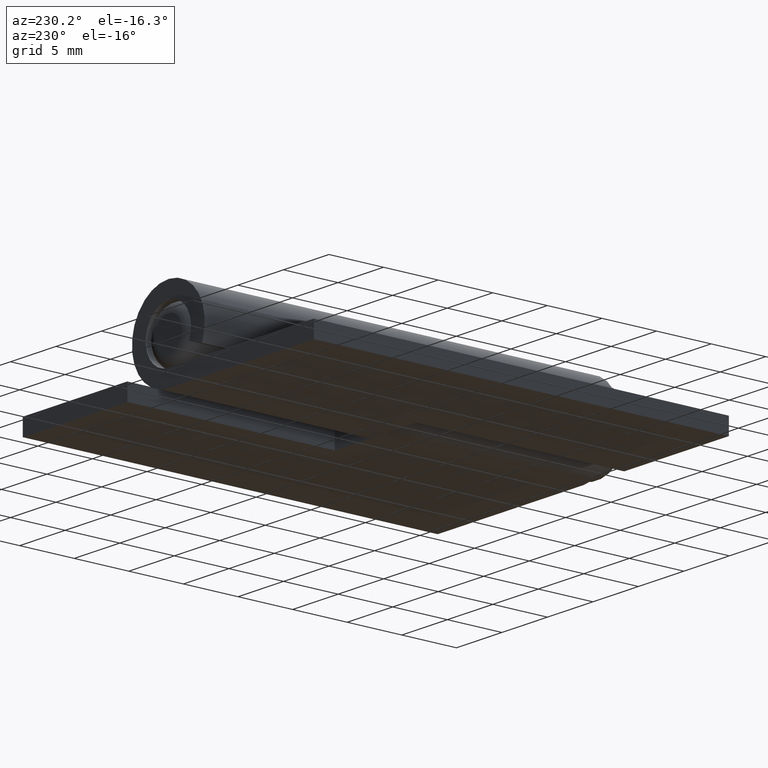
[diagram: clean part render]
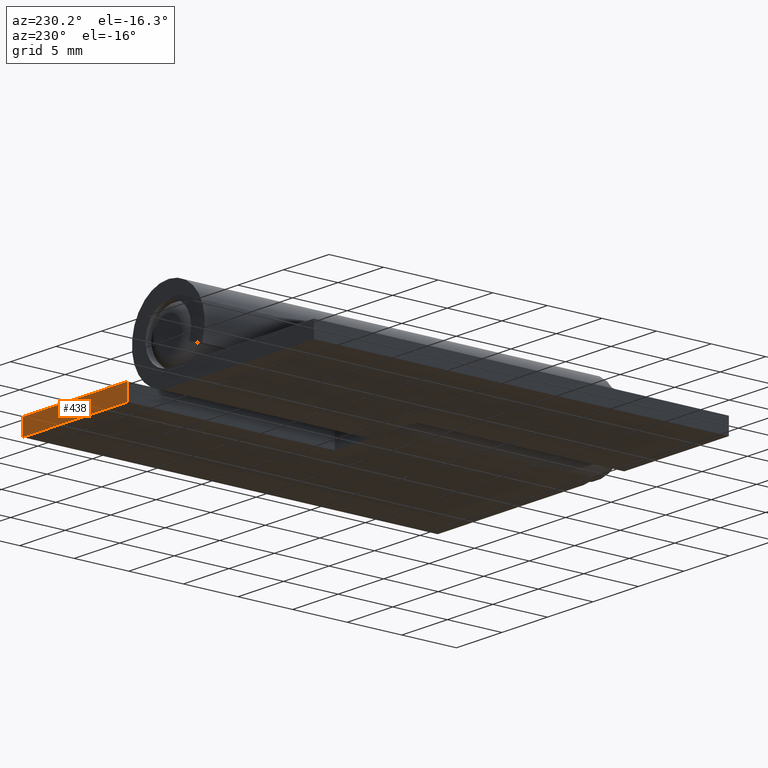
[diagram: same view with one face highlighted and labeled with its STEP entity id]
A machine part, auxiliary view. The second image highlights one B-rep face of the part: STEP entity #438.
In plain terms, the highlighted planar face has unit normal (-0, 1, 0).
Its self-contained STEP definition (entity closure, byte-faithful):
#58=FACE_OUTER_BOUND('',#86,.T.);
#86=EDGE_LOOP('',(#363,#364,#365,#366));
#131=LINE('',#708,#171);
#133=LINE('',#712,#173);
#138=LINE('',#724,#178);
#139=LINE('',#725,#179);
#171=VECTOR('',#568,1.5);
#173=VECTOR('',#572,11.5);
#178=VECTOR('',#583,11.5);
#179=VECTOR('',#584,1.5);
#223=VERTEX_POINT('',#705);
#224=VERTEX_POINT('',#707);
#225=VERTEX_POINT('',#711);
#229=VERTEX_POINT('',#723);
#271=EDGE_CURVE('',#224,#223,#131,.T.);
#273=EDGE_CURVE('',#224,#225,#133,.T.);
#279=EDGE_CURVE('',#229,#223,#138,.T.);
#280=EDGE_CURVE('',#225,#229,#139,.T.);
#363=ORIENTED_EDGE('',*,*,#271,.T.);
#364=ORIENTED_EDGE('',*,*,#279,.F.);
#365=ORIENTED_EDGE('',*,*,#280,.F.);
#366=ORIENTED_EDGE('',*,*,#273,.F.);
#416=PLANE('',#478);
#438=ADVANCED_FACE('',(#58),#416,.T.);
#478=AXIS2_PLACEMENT_3D('',#722,#581,#582);
#568=DIRECTION('',(-1.11022302462516E-16,1.,0.));
#572=DIRECTION('',(-1.,-1.21430643318377E-16,0.));
#581=DIRECTION('center_axis',(0.,0.,1.));
#582=DIRECTION('ref_axis',(1.,0.,0.));
#583=DIRECTION('',(1.,2.25514051876985E-16,0.));
#584=DIRECTION('',(0.,1.,0.));
#705=CARTESIAN_POINT('',(-4.50000000000001,1.5,38.));
#707=CARTESIAN_POINT('',(-4.50000000000001,-5.46437894932695E-16,38.));
#708=CARTESIAN_POINT('',(-4.50000000000001,1.26959508579537,38.));
#711=CARTESIAN_POINT('',(-16.,-1.94289029309402E-15,38.));
#712=CARTESIAN_POINT('',(0.,0.,38.));
#722=CARTESIAN_POINT('Origin',(-4.06133250128745,2.53919017159074,38.));
#723=CARTESIAN_POINT('',(-16.,1.5,38.));
#724=CARTESIAN_POINT('',(-16.,1.5,38.));
#725=CARTESIAN_POINT('',(-16.,-1.94289029309402E-15,38.));